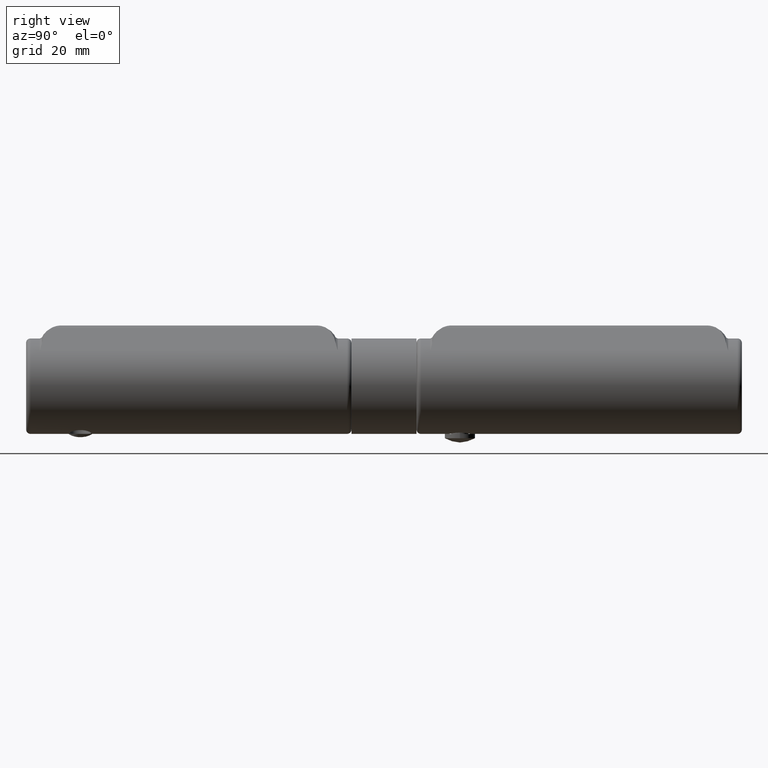
[diagram: clean part render]
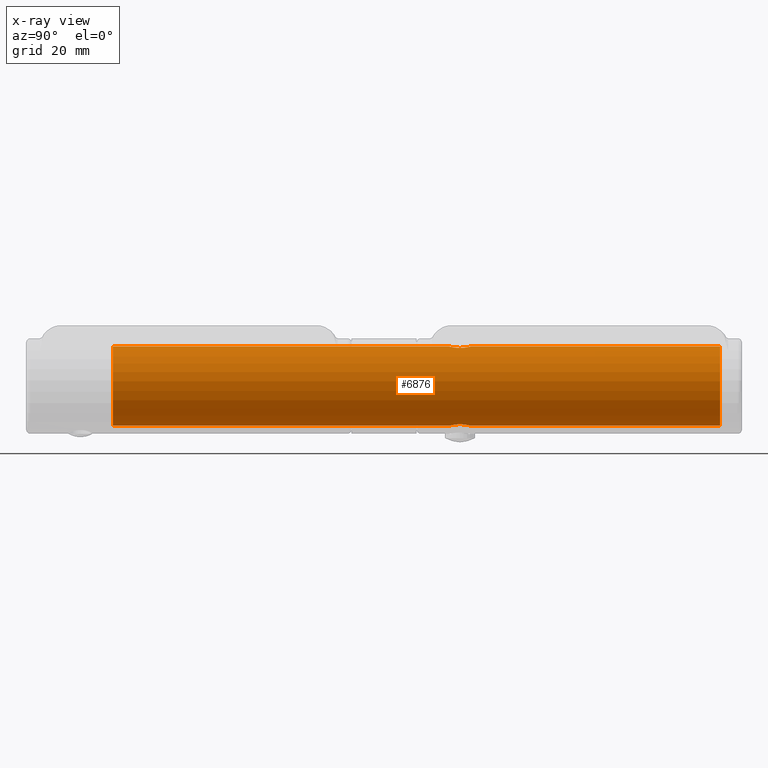
[diagram: x-ray — body ghosted, one internal face saturated and labeled with its STEP entity id]
A machine part, right view, then the same camera in x-ray: the body is ghosted and one INTERNAL B-rep face — a face not visible from any outside direction — is saturated and labeled: STEP entity #6876.
In plain terms, the highlighted cylindrical surface (bore or boss wall) has radius 9.15 mm, axis along (-0, -1, -0).
Its self-contained STEP definition (entity closure, byte-faithful):
#533 = CARTESIAN_POINT ( 'NONE',  ( -1.884262195468333179, 11.65110380920399713, 8.954654996316044446 ) ) ;
#593 = CARTESIAN_POINT ( 'NONE',  ( -1.987136362058500305, 11.52573326716347069, 8.932102411214625448 ) ) ;
#609 = AXIS2_PLACEMENT_3D ( 'NONE', #7963, #1732, #617 ) ;
#617 = DIRECTION ( 'NONE',  ( 0.000000000000000000, 0.000000000000000000, 1.000000000000000000 ) ) ;
#644 = CARTESIAN_POINT ( 'NONE',  ( -1.986366120803104707, 8.473313365763722516, 8.932271933393266750 ) ) ;
#751 = CARTESIAN_POINT ( 'NONE',  ( 2.500000000000000444, 10.16601400407261657, 8.801846397205530081 ) ) ;
#763 = CARTESIAN_POINT ( 'NONE',  ( -1.525758519518975787, 11.98712640518603045, -9.022936182455612908 ) ) ;
#822 = CARTESIAN_POINT ( 'NONE',  ( -2.419539105240247512, 9.349874452890174936, -8.824366194443014066 ) ) ;
#871 = CARTESIAN_POINT ( 'NONE',  ( -1.526915354924284651, 8.013806806011375627, -9.022732509116284660 ) ) ;
#926 = CARTESIAN_POINT ( 'NONE',  ( -0.3306332660934226397, 7.516514587322965291, -9.145448567560864106 ) ) ;
#1071 = AXIS2_PLACEMENT_3D ( 'NONE', #9649, #8331, #14809 ) ;
#1156 = CARTESIAN_POINT ( 'NONE',  ( 1.651329836676625806, 8.115936619361857396, -9.000524085107175054 ) ) ;
#1187 = EDGE_CURVE ( 'NONE', #15681, #15681, #14510, .T. ) ;
#1213 = CARTESIAN_POINT ( 'NONE',  ( 0.6566546199592081523, 7.565824258797864132, -9.131434390176982774 ) ) ;
#1368 = DIRECTION ( 'NONE',  ( 0.000000000000000000, 1.000000000000000000, 0.000000000000000000 ) ) ;
#1679 = VERTEX_POINT ( 'NONE', #14738 ) ;
#1732 = DIRECTION ( 'NONE',  ( 0.000000000000000000, 1.000000000000000000, 0.000000000000000000 ) ) ;
#1790 = EDGE_LOOP ( 'NONE', ( #2997 ) ) ;
#1864 = CARTESIAN_POINT ( 'NONE',  ( 2.371199174525186137, 9.191163224564551371, 8.837654399420879159 ) ) ;
#1986 = CARTESIAN_POINT ( 'NONE',  ( -2.246746321485336040, 11.10847766331949948, 8.870107107339119779 ) ) ;
#2043 = CARTESIAN_POINT ( 'NONE',  ( 0.1638162806329950538, 12.50006786214452958, 9.150018541568073260 ) ) ;
#2053 = CARTESIAN_POINT ( 'NONE',  ( -2.499893008040260600, 10.16554042733789665, -8.801876786265557584 ) ) ;
#2099 = VERTEX_POINT ( 'NONE', #9574 ) ;
#2103 = CARTESIAN_POINT ( 'NONE',  ( -1.652257953200283014, 8.116713165637296612, -9.000356845003121720 ) ) ;
#2317 = CARTESIAN_POINT ( 'NONE',  ( 0.6514404181554587225, 12.41920982789943650, -9.128204289939750637 ) ) ;
#2377 = CARTESIAN_POINT ( 'NONE',  ( 1.525957219660858621, 8.013032052160735219, -9.022901493995782118 ) ) ;
#2425 = CARTESIAN_POINT ( 'NONE',  ( 1.527136312531500728, 11.98610426220897729, -9.022708101194105268 ) ) ;
#2475 = CARTESIAN_POINT ( 'NONE',  ( 2.420070211953904149, 10.64817778895417888, -8.824220114505505919 ) ) ;
#2676 = VERTEX_POINT ( 'NONE', #15785 ) ;
#2997 = ORIENTED_EDGE ( 'NONE', *, *, #1187, .F. ) ;
#3071 = CARTESIAN_POINT ( 'NONE',  ( -2.418822425446645052, 9.347078252508364216, 8.824563673990883927 ) ) ;
#3181 = CARTESIAN_POINT ( 'NONE',  ( 0.6513482189605560579, 7.580726841828242080, 9.128220852199216750 ) ) ;
#3232 = CARTESIAN_POINT ( 'NONE',  ( 1.260007275601083832, 12.18378413583300102, 9.067897212057038914 ) ) ;
#3286 = CARTESIAN_POINT ( 'NONE',  ( -1.113146653195222546, 12.24457646109684283, 9.083328770487327120 ) ) ;
#3359 = CARTESIAN_POINT ( 'NONE',  ( -1.110378290827444658, 7.754177405208378282, -9.083641565020666775 ) ) ;
#3389 = CIRCLE ( 'NONE', #11980, 9.150000000000000355 ) ;
#3447 = CARTESIAN_POINT ( 'NONE',  ( 0.000000000000000000, 70.00000000000000000, 9.150000000000000355 ) ) ;
#3525 = CARTESIAN_POINT ( 'NONE',  ( -1.111302920125339266, 12.24540032088986230, -9.083535763977415911 ) ) ;
#3638 = CARTESIAN_POINT ( 'NONE',  ( 2.371532400598673096, 10.80774770688458553, -8.837562621577891520 ) ) ;
#3752 = CARTESIAN_POINT ( 'NONE',  ( 2.419099134248287708, 9.348375478039805841, -8.824486926116378527 ) ) ;
#4348 = CARTESIAN_POINT ( 'NONE',  ( 2.419642739733161907, 9.350352158693945981, 8.824337468055638567 ) ) ;
#4396 = CARTESIAN_POINT ( 'NONE',  ( -0.8064321099615647803, 7.627933312003309929, 9.115672444257583606 ) ) ;
#4450 = CARTESIAN_POINT ( 'NONE',  ( -1.536686279238083097, 8.001121183418936411, 9.023115954191988308 ) ) ;
#4506 = CARTESIAN_POINT ( 'NONE',  ( -0.8085264701040502100, 12.37139282034226184, 9.115494609258659509 ) ) ;
#4518 = CARTESIAN_POINT ( 'NONE',  ( -1.997529432805614347, 11.53789914957903839, -8.932358112344767065 ) ) ;
#4563 = CARTESIAN_POINT ( 'NONE',  ( -1.653830834671272232, 11.88186911880970875, 9.000062982813490819 ) ) ;
#4681 = CARTESIAN_POINT ( 'NONE',  ( -1.999034646031289553, 8.463522515115760925, -8.932070264457122377 ) ) ;
#4895 = CARTESIAN_POINT ( 'NONE',  ( 1.112108619065538928, 12.24495512958256249, -9.083426693050300926 ) ) ;
#5009 = CARTESIAN_POINT ( 'NONE',  ( 2.499929764942309340, 9.834077859615668160, -8.801866346159334498 ) ) ;
#5111 = DIRECTION ( 'NONE',  ( 0.000000000000000000, 0.000000000000000000, 1.000000000000000000 ) ) ;
#5197 = EDGE_CURVE ( 'NONE', #2676, #2676, #12426, .T. ) ;
#5589 = CARTESIAN_POINT ( 'NONE',  ( 2.245466419031604932, 8.888837088646711848, 8.870434113946931376 ) ) ;
#5643 = CARTESIAN_POINT ( 'NONE',  ( -2.245890926332387849, 8.889766294181967510, 8.870325002496084466 ) ) ;
#5699 = CARTESIAN_POINT ( 'NONE',  ( -1.526211765325401704, 11.98671333517256343, 9.022848678287358481 ) ) ;
#5747 = CARTESIAN_POINT ( 'NONE',  ( 0.1655238170928022279, 7.500104913501205672, 9.149971335114331694 ) ) ;
#5801 = CARTESIAN_POINT ( 'NONE',  ( -0.3314507819533463739, 12.48330523757290678, 9.145400386916584523 ) ) ;
#5952 = CYLINDRICAL_SURFACE ( 'NONE', #1071, 9.150000000000000355 ) ;
#6027 = CARTESIAN_POINT ( 'NONE',  ( 2.371411837277623835, 9.191539131420420006, -8.837601271491417165 ) ) ;
#6240 = CARTESIAN_POINT ( 'NONE',  ( 2.183872850355186301, 11.25983670122278291, -8.886501867612563998 ) ) ;
#6723 = EDGE_LOOP ( 'NONE', ( #13979 ) ) ;
#6819 = CARTESIAN_POINT ( 'NONE',  ( -2.483480300692505249, 9.669342578696037194, 8.806585692436957657 ) ) ;
#6871 = CARTESIAN_POINT ( 'NONE',  ( 2.168256379834319070, 11.25515313925449767, 8.889875953296236588 ) ) ;
#6876 = ADVANCED_FACE ( 'NONE', ( #9685, #13050, #10692, #10108 ), #5952, .T. ) ;
#6923 = CARTESIAN_POINT ( 'NONE',  ( -0.1658810623593676425, 12.49993171152311255, 9.149981341947672320 ) ) ;
#6976 = CARTESIAN_POINT ( 'NONE',  ( 1.986264684027216010, 11.52692427338716286, 8.932299972497187213 ) ) ;
#7226 = CARTESIAN_POINT ( 'NONE',  ( -1.254597557042110401, 12.16854683600245934, -9.064618104609559524 ) ) ;
#7275 = CARTESIAN_POINT ( 'NONE',  ( 2.244646616597075983, 8.887001956603615582, -8.870645517798935842 ) ) ;
#7963 = CARTESIAN_POINT ( 'NONE',  ( 0.000000000000000000, 70.00000000000000000, 0.000000000000000000 ) ) ;
#8049 = CARTESIAN_POINT ( 'NONE',  ( 1.881611699431994911, 11.65403433257779930, 8.955205530288633753 ) ) ;
#8103 = CARTESIAN_POINT ( 'NONE',  ( 0.8097572550412884818, 7.629182699094799958, 9.115350844137008579 ) ) ;
#8156 = CARTESIAN_POINT ( 'NONE',  ( 2.245022982260998390, 11.11196524910107897, 8.870545205977352410 ) ) ;
#8213 = CARTESIAN_POINT ( 'NONE',  ( -2.167336079922538961, 8.743386789144695470, 8.890094857459372335 ) ) ;
#8267 = CARTESIAN_POINT ( 'NONE',  ( 2.483623711547772839, 10.32948262892919900, 8.806544751892278811 ) ) ;
#8281 = CARTESIAN_POINT ( 'NONE',  ( -1.490777987167568597E-16, 12.50000000000000888, -9.150000000000002132 ) ) ;
#8331 = DIRECTION ( 'NONE',  ( -0.000000000000000000, -1.000000000000000000, -0.000000000000000000 ) ) ;
#8338 = CARTESIAN_POINT ( 'NONE',  ( -2.483684475532219604, 9.671147244512264152, -8.806527104450182719 ) ) ;
#8450 = CARTESIAN_POINT ( 'NONE',  ( -0.6529536686835120118, 7.581184244680887474, -9.128099438826323464 ) ) ;
#8652 = ORIENTED_EDGE ( 'NONE', *, *, #5197, .T. ) ;
#8704 = B_SPLINE_CURVE_WITH_KNOTS ( 'NONE', 3,
 ( #8281, #13360, #12105, #14706, #16027, #3525, #7226, #763, #10939, #4518, #9538, #13523, #13307, #16078, #2053, #12223, #8338, #822, #9604, #10997, #4681, #2103, #871, #10889, #3359, #13469, #8450, #926, #12272, #11328, #1213, #9885, #10063, #2377, #1156, #12552, #13582, #10002, #7275, #6027, #3752, #11155, #5009, #13802, #8720, #2475, #3638, #6240, #9935, #12495, #2425, #14866, #4895, #16369, #2317, #15093, #8774, #11272 ),
 .UNSPECIFIED., .T., .F.,
 ( 4, 2, 2, 2, 2, 2, 2, 2, 2, 2, 2, 2, 2, 2, 2, 2, 2, 2, 2, 2, 2, 2, 2, 2, 2, 2, 2, 2, 4 ),
 ( 0.000000000000000000, 0.0004907862256701022883, 0.0009815724513402045767, 0.001472358677010306973, 0.001963144902680409153, 0.002944717354020618284, 0.003435503579690722415, 0.003926289805360826113, 0.004417076031030930244, 0.004907862256701034376, 0.005889434708041236567, 0.006380220933711336362, 0.006871007159381436157, 0.007361793385051534216, 0.007852579610721633144, 0.008834152062061830998, 0.009324938287731929926, 0.009815724513402027118, 0.01030651073907212605, 0.01079729696474222497, 0.01128808319041232390, 0.01177886941608242456, 0.01226965564175252349, 0.01276044186742262242, 0.01374201431876282201, 0.01423280054443292267, 0.01472358677010302333, 0.01521437299577312399, 0.01570515922144322465 ),
 .UNSPECIFIED. ) ;
#8720 = CARTESIAN_POINT ( 'NONE',  ( 2.483989897307542272, 10.32660138847560383, -8.806440521010978628 ) ) ;
#8774 = CARTESIAN_POINT ( 'NONE',  ( 0.1660089956114486343, 12.50000000000001066, -9.150000000000003908 ) ) ;
#9341 = EDGE_CURVE ( 'NONE', #2099, #2099, #8704, .T. ) ;
#9364 = CARTESIAN_POINT ( 'NONE',  ( -0.6516611111469360340, 12.41909121779920788, 9.128173182739812930 ) ) ;
#9424 = CARTESIAN_POINT ( 'NONE',  ( 0.3282665815507537221, 7.516176703621934685, 9.145540524228442436 ) ) ;
#9480 = CARTESIAN_POINT ( 'NONE',  ( -1.883486177511333404, 8.347967878590887736, 8.954823358393054988 ) ) ;
#9526 = CARTESIAN_POINT ( 'NONE',  ( 2.500000000000000444, 10.00000000000000888, 8.801846397205531858 ) ) ;
#9538 = CARTESIAN_POINT ( 'NONE',  ( -2.183435949398595088, 11.26034826306103298, -8.886606592432338303 ) ) ;
#9574 = CARTESIAN_POINT ( 'NONE',  ( 0.000000000000000000, 12.50000000000001066, -9.150000000000002132 ) ) ;
#9604 = CARTESIAN_POINT ( 'NONE',  ( -2.372090444833100609, 9.193645071027919613, -8.837416268585585044 ) ) ;
#9649 = CARTESIAN_POINT ( 'NONE',  ( 0.000000000000000000, 70.00000000000000000, 0.000000000000000000 ) ) ;
#9685 = FACE_BOUND ( 'NONE', #6723, .T. ) ;
#9885 = CARTESIAN_POINT ( 'NONE',  ( 1.108608403174549117, 7.753315973339053535, -9.083855719704930110 ) ) ;
#9935 = CARTESIAN_POINT ( 'NONE',  ( 1.998018548401729655, 11.53723394870429075, -8.932243814686737338 ) ) ;
#10002 = CARTESIAN_POINT ( 'NONE',  ( 2.167506288733195952, 8.743712216708052765, -8.890051546759291767 ) ) ;
#10063 = CARTESIAN_POINT ( 'NONE',  ( 1.254938807320012728, 7.831656011639783976, -9.064569785514846600 ) ) ;
#10108 = FACE_OUTER_BOUND ( 'NONE', #12178, .T. ) ;
#10599 = CARTESIAN_POINT ( 'NONE',  ( 2.500000000000000888, 9.833985995927404744, 8.801846397205535411 ) ) ;
#10653 = CARTESIAN_POINT ( 'NONE',  ( -2.371188652260534990, 9.191229754560993115, 8.837655575902473970 ) ) ;
#10692 = FACE_OUTER_BOUND ( 'NONE', #1790, .T. ) ;
#10706 = CARTESIAN_POINT ( 'NONE',  ( 1.260521940004353247, 7.816651566006605378, 9.067794424995135216 ) ) ;
#10761 = CARTESIAN_POINT ( 'NONE',  ( 0.3266240532042748446, 12.48398823115892853, 9.145586327300284424 ) ) ;
#10820 = CARTESIAN_POINT ( 'NONE',  ( 2.500000000000000444, 10.00000000000000888, 8.801846397205531858 ) ) ;
#10889 = CARTESIAN_POINT ( 'NONE',  ( -1.256801546244630696, 7.832770483241933590, -9.064304844031035202 ) ) ;
#10939 = CARTESIAN_POINT ( 'NONE',  ( -1.653493801221397552, 11.88209262700394220, -9.000117753110036034 ) ) ;
#10967 = EDGE_CURVE ( 'NONE', #1679, #1679, #3389, .T. ) ;
#10997 = CARTESIAN_POINT ( 'NONE',  ( -2.183080997603919826, 8.738158980820102784, -8.886710014894108056 ) ) ;
#11155 = CARTESIAN_POINT ( 'NONE',  ( 2.483300739419965097, 9.668529674726487499, -8.806635428364000262 ) ) ;
#11272 = CARTESIAN_POINT ( 'NONE',  ( -1.490777987167568597E-16, 12.50000000000000888, -9.150000000000002132 ) ) ;
#11328 = CARTESIAN_POINT ( 'NONE',  ( 0.3261845471242909023, 7.499860591697034451, -9.150038089697055455 ) ) ;
#11571 = EDGE_LOOP ( 'NONE', ( #8652 ) ) ;
#11868 = CARTESIAN_POINT ( 'NONE',  ( -2.500141160521936801, 10.32616014349421718, 8.801806303201011872 ) ) ;
#11980 = AXIS2_PLACEMENT_3D ( 'NONE', #15301, #1368, #5111 ) ;
#11986 = CARTESIAN_POINT ( 'NONE',  ( -1.262008606023063084, 7.817005094040192503, 9.067695501847206074 ) ) ;
#12042 = CARTESIAN_POINT ( 'NONE',  ( 2.370454215514784302, 10.81088946117005989, 8.837853090786017773 ) ) ;
#12094 = CARTESIAN_POINT ( 'NONE',  ( 2.168643907456158537, 8.745573703303051616, 8.889778076609552215 ) ) ;
#12105 = CARTESIAN_POINT ( 'NONE',  ( -0.3290905991838347089, 12.48363009109129962, -9.145488957370629279 ) ) ;
#12178 = EDGE_LOOP ( 'NONE', ( #14196 ) ) ;
#12223 = CARTESIAN_POINT ( 'NONE',  ( -2.500105937319293314, 9.837707095310333827, -8.801816307696380903 ) ) ;
#12272 = CARTESIAN_POINT ( 'NONE',  ( -0.1646923728124764230, 7.500070045527194473, -9.149980861879432936 ) ) ;
#12426 = B_SPLINE_CURVE_WITH_KNOTS ( 'NONE', 3,
 ( #9526, #10599, #15750, #4348, #1864, #5589, #12094, #13345, #13296, #14413, #10706, #8103, #3181, #9424, #5747, #14586, #15639, #13246, #4396, #11986, #4450, #9480, #644, #8213, #5643, #10653, #3071, #6819, #14520, #11868, #13131, #1986, #14467, #593, #533, #4563, #5699, #15689, #3286, #4506, #9364, #5801, #6923, #2043, #10761, #15799, #14636, #3232, #13197, #8049, #6976, #6871, #8156, #12042, #15851, #8267, #751, #10820 ),
 .UNSPECIFIED., .T., .F.,
 ( 4, 2, 2, 2, 2, 2, 2, 2, 2, 2, 2, 2, 2, 2, 2, 2, 2, 2, 2, 2, 2, 2, 2, 2, 2, 2, 2, 2, 4 ),
 ( 0.000000000000000000, 0.0004907797077131282248, 0.0009815594154262564496, 0.001472339123139384566, 0.001963118830852512899, 0.002944678246278771734, 0.003435457953991901802, 0.003926237661705031870, 0.004417017369418161504, 0.004907797077131292006, 0.005889356492557553009, 0.006380136200270687848, 0.006870915907983821819, 0.007361695615696956657, 0.007852475323410089761, 0.008834034738836357703, 0.009324814446549490807, 0.009815594154262622176, 0.01030637386197575354, 0.01079715356968888491, 0.01128793327740201628, 0.01177871298511514765, 0.01226949269282828076, 0.01276027240054141212, 0.01374183181596767486, 0.01423261152368080623, 0.01472339123139393934, 0.01521417093910707070, 0.01570495064682020381 ),
 .UNSPECIFIED. ) ;
#12495 = CARTESIAN_POINT ( 'NONE',  ( 1.654263877286405782, 11.88140973939941247, -8.999975024715185512 ) ) ;
#12552 = CARTESIAN_POINT ( 'NONE',  ( 1.882056264728764416, 8.346382974157775081, -8.955120783802305695 ) ) ;
#13050 = FACE_BOUND ( 'NONE', #11571, .T. ) ;
#13131 = CARTESIAN_POINT ( 'NONE',  ( -2.434182357963211807, 10.65659980271485807, 8.821220593732157056 ) ) ;
#13197 = CARTESIAN_POINT ( 'NONE',  ( 1.537473839432626610, 11.99783453674272238, 9.022934605862229063 ) ) ;
#13246 = CARTESIAN_POINT ( 'NONE',  ( -0.6501792376074515545, 7.580474900344500888, 9.128288275920411365 ) ) ;
#13296 = CARTESIAN_POINT ( 'NONE',  ( 1.882283060346248371, 8.346723694454757592, 8.955064462504049416 ) ) ;
#13307 = CARTESIAN_POINT ( 'NONE',  ( -2.419278240012897818, 10.65132614240325282, -8.824438498925186281 ) ) ;
#13345 = CARTESIAN_POINT ( 'NONE',  ( 1.987277239868389112, 8.474440790040386418, 8.932071418244245109 ) ) ;
#13360 = CARTESIAN_POINT ( 'NONE',  ( -0.1660089956114489396, 12.50000000000000711, -9.149999999999998579 ) ) ;
#13469 = CARTESIAN_POINT ( 'NONE',  ( -0.8088406789589404067, 7.628832390555512433, -9.115440789483148620 ) ) ;
#13523 = CARTESIAN_POINT ( 'NONE',  ( -2.370836009679751388, 10.80969388508100870, -8.837748804625119803 ) ) ;
#13582 = CARTESIAN_POINT ( 'NONE',  ( 1.986876222055028229, 8.474003478254658717, -8.932156676523733907 ) ) ;
#13802 = CARTESIAN_POINT ( 'NONE',  ( 2.500069784217700430, 10.16379884113111665, -8.801826576304403460 ) ) ;
#13979 = ORIENTED_EDGE ( 'NONE', *, *, #9341, .T. ) ;
#14196 = ORIENTED_EDGE ( 'NONE', *, *, #10967, .T. ) ;
#14413 = CARTESIAN_POINT ( 'NONE',  ( 1.538145613066911110, 8.002662692488287988, 9.022820194400459570 ) ) ;
#14467 = CARTESIAN_POINT ( 'NONE',  ( -2.168438547153657581, 11.25476977615917207, 8.889827820214478038 ) ) ;
#14510 = CIRCLE ( 'NONE', #609, 9.150000000000000355 ) ;
#14520 = CARTESIAN_POINT ( 'NONE',  ( -2.499929069690059791, 9.835299629770823060, 8.801866543632657525 ) ) ;
#14586 = CARTESIAN_POINT ( 'NONE',  ( -0.1623393655008625314, 7.499896100572105873, 9.150028387816490749 ) ) ;
#14636 = CARTESIAN_POINT ( 'NONE',  ( 0.8078379131343427222, 12.37150390632688612, 9.115528917833165323 ) ) ;
#14706 = CARTESIAN_POINT ( 'NONE',  ( -0.6496848985850492975, 12.41963397736018848, -9.128317392839155886 ) ) ;
#14738 = CARTESIAN_POINT ( 'NONE',  ( 0.000000000000000000, -70.00000000000000000, 9.150000000000000355 ) ) ;
#14809 = DIRECTION ( 'NONE',  ( 0.000000000000000000, 0.000000000000000000, -1.000000000000000000 ) ) ;
#14866 = CARTESIAN_POINT ( 'NONE',  ( 1.255329750975424208, 12.16815651504521156, -9.064521720020422890 ) ) ;
#15093 = CARTESIAN_POINT ( 'NONE',  ( 0.3294869614310602102, 12.48362419702714021, -9.145486674831911245 ) ) ;
#15301 = CARTESIAN_POINT ( 'NONE',  ( 0.000000000000000000, -70.00000000000000000, 0.000000000000000000 ) ) ;
#15639 = CARTESIAN_POINT ( 'NONE',  ( -0.3288954946882392538, 7.516320773035991110, 9.145502044332809888 ) ) ;
#15681 = VERTEX_POINT ( 'NONE', #3447 ) ;
#15689 = CARTESIAN_POINT ( 'NONE',  ( -1.256470569839467366, 12.16740257817911086, 9.064347871249038846 ) ) ;
#15750 = CARTESIAN_POINT ( 'NONE',  ( 2.483629345849855063, 9.670912506937074937, 8.806542341379357097 ) ) ;
#15785 = CARTESIAN_POINT ( 'NONE',  ( 2.500000000000000444, 10.00000000000000888, 8.801846397205530081 ) ) ;
#15799 = CARTESIAN_POINT ( 'NONE',  ( 0.6482384210448859374, 12.42005532047283012, 9.128429190814527416 ) ) ;
#15851 = CARTESIAN_POINT ( 'NONE',  ( 2.419218236706392577, 10.65140514775034752, 8.824454676116305407 ) ) ;
#16027 = CARTESIAN_POINT ( 'NONE',  ( -0.8089015731786465269, 12.37118009148198006, -9.115442633281457319 ) ) ;
#16078 = CARTESIAN_POINT ( 'NONE',  ( -2.483822128102315840, 10.32826907001282457, -8.806489065448399600 ) ) ;
#16369 = CARTESIAN_POINT ( 'NONE',  ( 0.8109581826365548363, 12.37043370302856538, -9.115249469687231709 ) ) ;